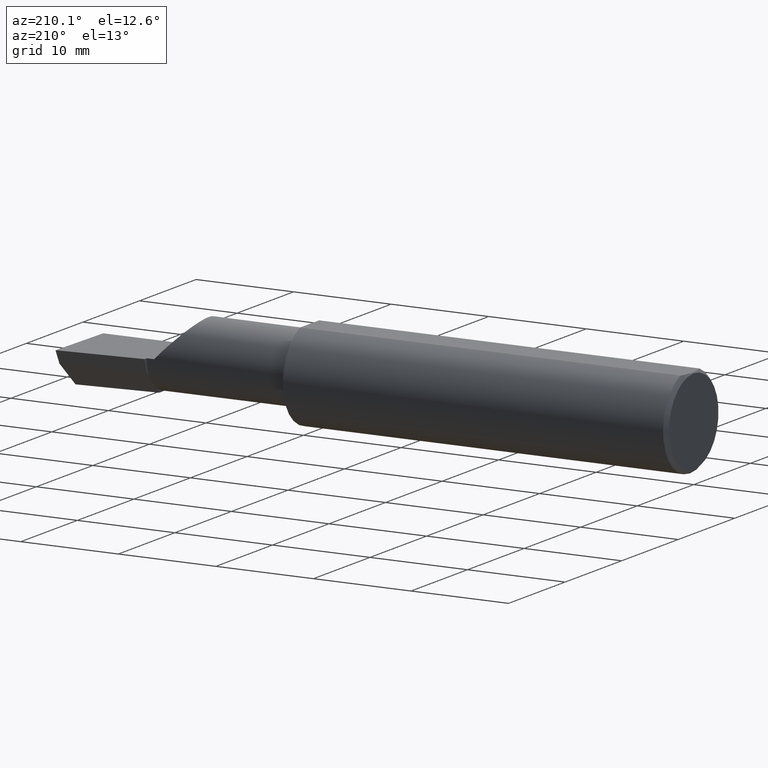
[diagram: clean part render]
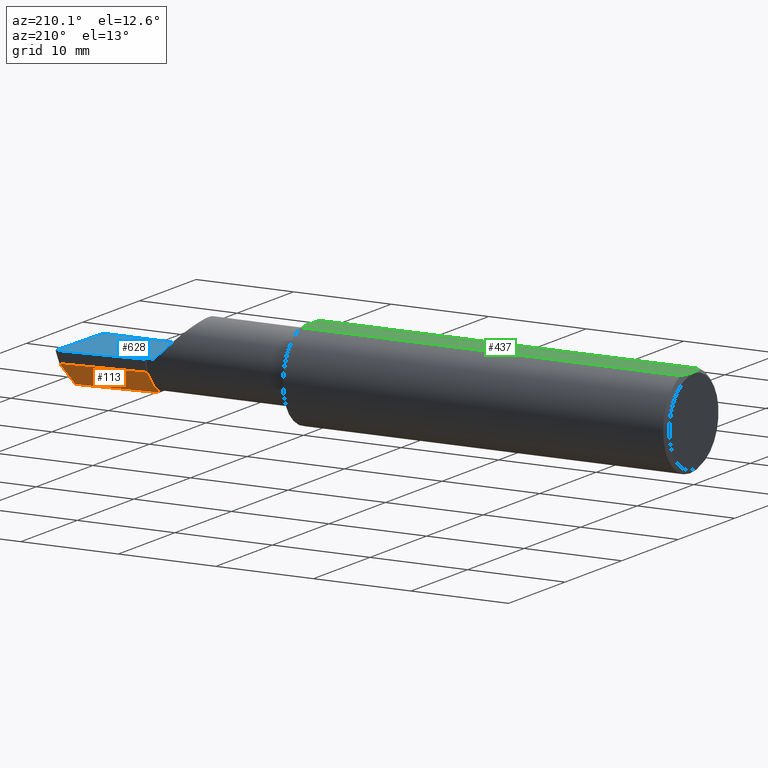
[diagram: same view with three faces highlighted in distinct colors, each labeled with its STEP entity id]
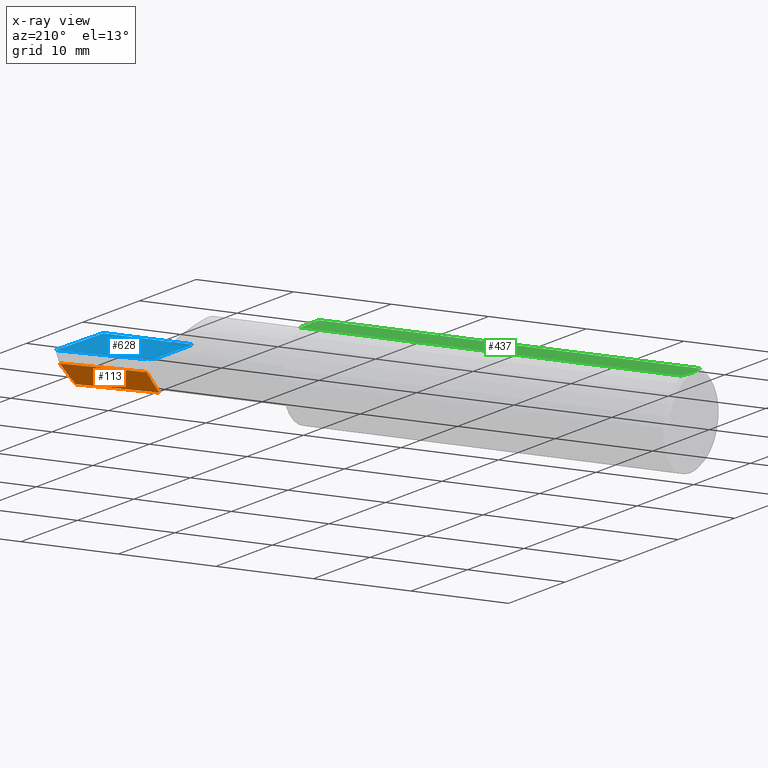
[diagram: x-ray of the same camera — body ghosted, the three highlighted faces saturated]
A machine part, auxiliary view with three faces highlighted in distinct colors.
The next image is the same camera in x-ray (body ghosted, the three faces saturated) — at least one of them is partly hidden behind the body in this view.
Their STEP definitions:

[orange] entity #113 — the highlighted planar face has unit normal (-0.0689, 0.716, -0.6947).
#2 = VECTOR ( 'NONE', #337, 39.37007874015748854 ) ;
#13 = CARTESIAN_POINT ( 'NONE',  ( 2.493766568580444432, 0.1168246249203732934, -0.04780233936830599606 ) ) ;
#16 = VERTEX_POINT ( 'NONE', #43 ) ;
#17 = CARTESIAN_POINT ( 'NONE',  ( 2.493439983562941720, 0.1146611065212079089, -0.04999999999999999584 ) ) ;
#25 = ORIENTED_EDGE ( 'NONE', *, *, #68, .F. ) ;
#38 = ORIENTED_EDGE ( 'NONE', *, *, #338, .T. ) ;
#43 = CARTESIAN_POINT ( 'NONE',  ( 2.160000000000000142, 0.01441505128072300204, -0.1202356058309979880 ) ) ;
#65 = LINE ( 'NONE', #114, #562 ) ;
#68 = EDGE_CURVE ( 'NONE', #620, #589, #403, .T. ) ;
#86 = CARTESIAN_POINT ( 'NONE',  ( 2.480058035321255794, 0.02601009779168077587, -0.1400500000000000633 ) ) ;
#113 = ADVANCED_FACE ( 'NONE', ( #123 ), #549, .T. ) ;
#114 = CARTESIAN_POINT ( 'NONE',  ( 2.160000000000000142, 0.06382066673065313334, -0.06931012851386068874 ) ) ;
#115 = CARTESIAN_POINT ( 'NONE',  ( 2.511419111345317923, 0.1163922996227946260, -0.04999999999999999584 ) ) ;
#117 = VECTOR ( 'NONE', #168, 39.37007874015748854 ) ;
#123 = FACE_OUTER_BOUND ( 'NONE', #328, .T. ) ;
#139 = CARTESIAN_POINT ( 'NONE',  ( 2.511419111345317923, 0.1163922996227946260, -0.04999999999999999584 ) ) ;
#168 = DIRECTION ( 'NONE',  ( 0.1053106618240635256, 0.6976485211320200275, 0.7086580314005359593 ) ) ;
#171 = EDGE_CURVE ( 'NONE', #589, #467, #192, .T. ) ;
#184 = LINE ( 'NONE', #326, #388 ) ;
#192 = LINE ( 'NONE', #139, #2 ) ;
#195 = AXIS2_PLACEMENT_3D ( 'NONE', #115, #321, #313 ) ;
#199 = CARTESIAN_POINT ( 'NONE',  ( 2.160000000000000142, 0.06495571228477943493, -0.06814016562413294231 ) ) ;
#228 = EDGE_CURVE ( 'NONE', #16, #433, #622, .T. ) ;
#266 = DIRECTION ( 'NONE',  ( 4.755568962650853567E-18, -0.6963153109074925462, -0.7177360153954946975 ) ) ;
#286 = DIRECTION ( 'NONE',  ( 4.755568962650853567E-18, -0.6963153109074925462, -0.7177360153954946975 ) ) ;
#313 = DIRECTION ( 'NONE',  ( 0.000000000000000000, 0.6963153109074925462, 0.7177360153954948085 ) ) ;
#318 = EDGE_CURVE ( 'NONE', #416, #16, #184, .T. ) ;
#321 = DIRECTION ( 'NONE',  ( -0.06894566448119621160, 0.7160281025913034503, -0.6946583704589934793 ) ) ;
#326 = CARTESIAN_POINT ( 'NONE',  ( 2.160000000000000142, 0.06382066673065313334, -0.06931012851386068874 ) ) ;
#328 = EDGE_LOOP ( 'NONE', ( #25, #38, #485, #587, #574, #499 ) ) ;
#337 = DIRECTION ( 'NONE',  ( -0.9953961983671800740, -0.09584575252021031166, 0.000000000000000000 ) ) ;
#338 = EDGE_CURVE ( 'NONE', #620, #433, #381, .T. ) ;
#350 = CARTESIAN_POINT ( 'NONE',  ( 2.160000000000000142, 0.08255448787293399870, -0.05000000000000000278 ) ) ;
#381 = LINE ( 'NONE', #491, #543 ) ;
#388 = VECTOR ( 'NONE', #468, 39.37007874015748854 ) ;
#389 = DIRECTION ( 'NONE',  ( -0.9953961983671800740, -0.09584575252021031166, -1.093478026937437817E-17 ) ) ;
#403 = LINE ( 'NONE', #13, #117 ) ;
#415 = VECTOR ( 'NONE', #286, 39.37007874015748854 ) ;
#416 = VERTEX_POINT ( 'NONE', #199 ) ;
#433 = VERTEX_POINT ( 'NONE', #492 ) ;
#467 = VERTEX_POINT ( 'NONE', #350 ) ;
#468 = DIRECTION ( 'NONE',  ( 4.755568962650853567E-18, -0.6963153109074925462, -0.7177360153954946975 ) ) ;
#485 = ORIENTED_EDGE ( 'NONE', *, *, #228, .F. ) ;
#491 = CARTESIAN_POINT ( 'NONE',  ( 2.491859106488688358, 0.02714641170210413054, -0.1400500000000000633 ) ) ;
#492 = CARTESIAN_POINT ( 'NONE',  ( 2.160000000000000142, -0.004807985797372735411, -0.1400500000000000911 ) ) ;
#499 = ORIENTED_EDGE ( 'NONE', *, *, #171, .F. ) ;
#543 = VECTOR ( 'NONE', #389, 39.37007874015748854 ) ;
#549 = PLANE ( 'NONE',  #195 ) ;
#562 = VECTOR ( 'NONE', #266, 39.37007874015748854 ) ;
#566 = CARTESIAN_POINT ( 'NONE',  ( 2.160000000000000142, 0.06382066673065313334, -0.06931012851386068874 ) ) ;
#574 = ORIENTED_EDGE ( 'NONE', *, *, #578, .F. ) ;
#578 = EDGE_CURVE ( 'NONE', #467, #416, #65, .T. ) ;
#587 = ORIENTED_EDGE ( 'NONE', *, *, #318, .F. ) ;
#589 = VERTEX_POINT ( 'NONE', #17 ) ;
#620 = VERTEX_POINT ( 'NONE', #86 ) ;
#622 = LINE ( 'NONE', #566, #415 ) ;

[blue] entity #628 — the highlighted planar face has unit normal (-0, 0, -1).
#15 = DIRECTION ( 'NONE',  ( 0.9953961983671787417, 0.09584575252022459191, -1.028972571603813720E-16 ) ) ;
#21 = VECTOR ( 'NONE', #584, 39.37007874015748854 ) ;
#23 = VERTEX_POINT ( 'NONE', #93 ) ;
#26 = DIRECTION ( 'NONE',  ( -1.033731667140896077E-16, 0.000000000000000000, -1.000000000000000000 ) ) ;
#40 = EDGE_CURVE ( 'NONE', #158, #567, #412, .T. ) ;
#46 = VERTEX_POINT ( 'NONE', #512 ) ;
#74 = ORIENTED_EDGE ( 'NONE', *, *, #384, .F. ) ;
#77 = VECTOR ( 'NONE', #436, 39.37007874015748143 ) ;
#93 = CARTESIAN_POINT ( 'NONE',  ( 2.160000000000000142, 0.09791172361284175563, 3.308097179827818849E-16 ) ) ;
#128 = VERTEX_POINT ( 'NONE', #308 ) ;
#158 = VERTEX_POINT ( 'NONE', #453 ) ;
#176 = ORIENTED_EDGE ( 'NONE', *, *, #40, .F. ) ;
#188 = CARTESIAN_POINT ( 'NONE',  ( 2.129999999999999893, -0.2500000000000000555, 1.065442715258197396E-16 ) ) ;
#196 = VECTOR ( 'NONE', #15, 39.37007874015748143 ) ;
#209 = CARTESIAN_POINT ( 'NONE',  ( -9.564882787816662316E-19, 0.08264999999999995961, 3.267291166268304703E-16 ) ) ;
#210 = EDGE_CURVE ( 'NONE', #351, #158, #572, .T. ) ;
#217 = ORIENTED_EDGE ( 'NONE', *, *, #341, .T. ) ;
#248 = ORIENTED_EDGE ( 'NONE', *, *, #513, .F. ) ;
#254 = LINE ( 'NONE', #393, #77 ) ;
#269 = CARTESIAN_POINT ( 'NONE',  ( 0.5470260790800316464, -0.05740000000000000657, 2.701812985571356346E-16 ) ) ;
#279 = CARTESIAN_POINT ( 'NONE',  ( 2.500000000000000000, -0.2500000000000000555, 6.829619984160658046E-17 ) ) ;
#290 = DIRECTION ( 'NONE',  ( -0.000000000000000000, 1.000000000000000000, -0.000000000000000000 ) ) ;
#301 = DIRECTION ( 'NONE',  ( -1.000000000000000000, -0.000000000000000000, -0.000000000000000000 ) ) ;
#304 = ORIENTED_EDGE ( 'NONE', *, *, #451, .F. ) ;
#308 = CARTESIAN_POINT ( 'NONE',  ( 2.491672876940991710, -0.1873499999999999888, 6.915950918908297591E-17 ) ) ;
#314 = VECTOR ( 'NONE', #598, 39.37007874015748143 ) ;
#336 = AXIS2_PLACEMENT_3D ( 'NONE', #279, #26, #527 ) ;
#340 = CARTESIAN_POINT ( 'NONE',  ( 3.377502344341257155E-32, -0.1873499999999999610, 3.267291166268304703E-16 ) ) ;
#341 = EDGE_CURVE ( 'NONE', #128, #46, #583, .T. ) ;
#345 = CARTESIAN_POINT ( 'NONE',  ( 2.490039159128059953, -0.2497391662021650194, 6.932588350567417155E-17 ) ) ;
#351 = VERTEX_POINT ( 'NONE', #449 ) ;
#377 = VECTOR ( 'NONE', #301, 39.37007874015748143 ) ;
#380 = FACE_OUTER_BOUND ( 'NONE', #390, .T. ) ;
#384 = EDGE_CURVE ( 'NONE', #567, #23, #254, .T. ) ;
#390 = EDGE_LOOP ( 'NONE', ( #304, #217, #248, #74, #176, #482 ) ) ;
#393 = CARTESIAN_POINT ( 'NONE',  ( 2.160000000000000142, -0.2500000000000000555, 1.034430765243970311E-16 ) ) ;
#402 = LINE ( 'NONE', #269, #196 ) ;
#412 = LINE ( 'NONE', #209, #314 ) ;
#436 = DIRECTION ( 'NONE',  ( -6.829619984160658816E-18, 1.000000000000000000, 7.059994452165177242E-34 ) ) ;
#449 = CARTESIAN_POINT ( 'NONE',  ( 2.129999999999999893, -0.1873499999999999888, 1.065442715258197396E-16 ) ) ;
#451 = EDGE_CURVE ( 'NONE', #128, #351, #495, .T. ) ;
#453 = CARTESIAN_POINT ( 'NONE',  ( 2.129999999999999893, 0.08264999999999983471, 1.065442715258197396E-16 ) ) ;
#482 = ORIENTED_EDGE ( 'NONE', *, *, #210, .F. ) ;
#495 = LINE ( 'NONE', #340, #377 ) ;
#501 = CARTESIAN_POINT ( 'NONE',  ( 2.160000000000000142, 0.08265000000000004288, 3.267291166268306182E-16 ) ) ;
#512 = CARTESIAN_POINT ( 'NONE',  ( 2.499999999999978684, 0.1306500000000238582, 8.403660643088248419E-14 ) ) ;
#513 = EDGE_CURVE ( 'NONE', #23, #46, #402, .T. ) ;
#527 = DIRECTION ( 'NONE',  ( -1.000000000000000000, 0.000000000000000000, 1.033731667140896077E-16 ) ) ;
#567 = VERTEX_POINT ( 'NONE', #501 ) ;
#568 = PLANE ( 'NONE',  #336 ) ;
#572 = LINE ( 'NONE', #188, #623 ) ;
#583 = LINE ( 'NONE', #345, #21 ) ;
#584 = DIRECTION ( 'NONE',  ( 0.02617694830779364323, 0.9996573249755593693, -2.665804247635780349E-18 ) ) ;
#598 = DIRECTION ( 'NONE',  ( 1.000000000000000000, 6.829619984160658046E-18, 0.000000000000000000 ) ) ;
#623 = VECTOR ( 'NONE', #290, 39.37007874015748143 ) ;
#628 = ADVANCED_FACE ( 'NONE', ( #380 ), #568, .F. ) ;

[green] entity #437 — the highlighted planar face has unit normal (0, -0, -1).
#7 = EDGE_LOOP ( 'NONE', ( #272, #560, #181, #140, #277 ) ) ;
#22 = CARTESIAN_POINT ( 'NONE',  ( 0.000000000000000000, 0.06597272163553663527, 0.1753499999999999781 ) ) ;
#49 = CARTESIAN_POINT ( 'NONE',  ( 0.008227791779583789808, -0.04447712204611815878, 0.1753499999999999781 ) ) ;
#59 = CARTESIAN_POINT ( 'NONE',  ( 0.003000000000000169632, 0.01127363201155560934, 0.1753499999999999781 ) ) ;
#82 = EDGE_CURVE ( 'NONE', #374, #334, #455, .T. ) ;
#103 = PLANE ( 'NONE',  #395 ) ;
#109 = EDGE_CURVE ( 'NONE', #514, #234, #462, .T. ) ;
#140 = ORIENTED_EDGE ( 'NONE', *, *, #396, .F. ) ;
#147 = DIRECTION ( 'NONE',  ( 0.000000000000000000, -1.438723400918613551E-16, -1.000000000000000000 ) ) ;
#149 = DIRECTION ( 'NONE',  ( 6.829619984160658046E-18, -1.000000000000000000, 1.438723400918613551E-16 ) ) ;
#160 = CARTESIAN_POINT ( 'NONE',  ( 0.008244775919947424855, 0.04453482769755855164, 0.1753499999999999504 ) ) ;
#169 = CARTESIAN_POINT ( 'NONE',  ( 1.550000000000000044, -0.06597272163553659363, 0.1753499999999999781 ) ) ;
#181 = ORIENTED_EDGE ( 'NONE', *, *, #609, .F. ) ;
#200 = CARTESIAN_POINT ( 'NONE',  ( 0.004093196532652216939, -0.02240707710020816909, 0.1753499999999999504 ) ) ;
#225 = VECTOR ( 'NONE', #596, 39.37007874015748143 ) ;
#234 = VERTEX_POINT ( 'NONE', #476 ) ;
#253 = CARTESIAN_POINT ( 'NONE',  ( 1.550000000000000044, 0.2373500000000000332, 0.1753499999999999504 ) ) ;
#258 = DIRECTION ( 'NONE',  ( 0.000000000000000000, 1.000000000000000000, -1.438723400918613551E-16 ) ) ;
#260 = CARTESIAN_POINT ( 'NONE',  ( 0.01125230581755086272, 0.05532998191409922023, 0.1753500000000000059 ) ) ;
#265 = VECTOR ( 'NONE', #149, 39.37007874015748143 ) ;
#272 = ORIENTED_EDGE ( 'NONE', *, *, #358, .F. ) ;
#277 = ORIENTED_EDGE ( 'NONE', *, *, #109, .F. ) ;
#303 = CARTESIAN_POINT ( 'NONE',  ( 2.500000000000000000, 0.2373500000000000332, 0.1753499999999999504 ) ) ;
#327 = B_SPLINE_CURVE_WITH_KNOTS ( 'NONE', 3,
 ( #408, #59, #399, #160, #260, #546 ),
 .UNSPECIFIED., .F., .F.,
 ( 4, 2, 4 ),
 ( 0.003480013901590607410, 0.004330767971208083697, 0.005181522040825559984 ),
 .UNSPECIFIED. ) ;
#334 = VERTEX_POINT ( 'NONE', #616 ) ;
#357 = CARTESIAN_POINT ( 'NONE',  ( 0.003000000000000218638, 2.334609556160449697E-17, 0.1753499999999999781 ) ) ;
#358 = EDGE_CURVE ( 'NONE', #334, #514, #391, .T. ) ;
#374 = VERTEX_POINT ( 'NONE', #532 ) ;
#391 = LINE ( 'NONE', #253, #265 ) ;
#394 = CARTESIAN_POINT ( 'NONE',  ( 0.003000000000000218638, 2.334609556160449697E-17, 0.1753499999999999781 ) ) ;
#395 = AXIS2_PLACEMENT_3D ( 'NONE', #303, #147, #258 ) ;
#396 = EDGE_CURVE ( 'NONE', #234, #538, #625, .T. ) ;
#399 = CARTESIAN_POINT ( 'NONE',  ( 0.004115035183746292881, 0.02255629470626744487, 0.1753499999999999781 ) ) ;
#406 = CARTESIAN_POINT ( 'NONE',  ( 0.000000000000000000, -0.06597272163553657975, 0.1753499999999999781 ) ) ;
#408 = CARTESIAN_POINT ( 'NONE',  ( 0.003000000000000218638, 2.334609556160449697E-17, 0.1753499999999999781 ) ) ;
#413 = VECTOR ( 'NONE', #602, 39.37007874015748143 ) ;
#437 = ADVANCED_FACE ( 'NONE', ( #490 ), #103, .F. ) ;
#440 = CARTESIAN_POINT ( 'NONE',  ( 0.01499999999999997863, -0.06597272163553657975, 0.1753499999999999781 ) ) ;
#455 = LINE ( 'NONE', #22, #413 ) ;
#462 = LINE ( 'NONE', #406, #225 ) ;
#476 = CARTESIAN_POINT ( 'NONE',  ( 0.01499999999999997863, -0.06597272163553657975, 0.1753499999999999781 ) ) ;
#487 = CARTESIAN_POINT ( 'NONE',  ( 0.003000000000000172667, -0.01126410975715121283, 0.1753500000000000059 ) ) ;
#490 = FACE_OUTER_BOUND ( 'NONE', #7, .T. ) ;
#514 = VERTEX_POINT ( 'NONE', #169 ) ;
#532 = CARTESIAN_POINT ( 'NONE',  ( 0.01499999999999999424, 0.06597272163553663527, 0.1753499999999999781 ) ) ;
#535 = CARTESIAN_POINT ( 'NONE',  ( 0.01128414053810044941, -0.05542038647445821781, 0.1753499999999999781 ) ) ;
#538 = VERTEX_POINT ( 'NONE', #357 ) ;
#546 = CARTESIAN_POINT ( 'NONE',  ( 0.01499999999999999424, 0.06597272163553663527, 0.1753499999999999781 ) ) ;
#560 = ORIENTED_EDGE ( 'NONE', *, *, #82, .F. ) ;
#596 = DIRECTION ( 'NONE',  ( -1.000000000000000000, -0.000000000000000000, -0.000000000000000000 ) ) ;
#602 = DIRECTION ( 'NONE',  ( 1.000000000000000000, 0.000000000000000000, 0.000000000000000000 ) ) ;
#609 = EDGE_CURVE ( 'NONE', #538, #374, #327, .T. ) ;
#616 = CARTESIAN_POINT ( 'NONE',  ( 1.550000000000000044, 0.06597272163553663527, 0.1753499999999999781 ) ) ;
#625 = B_SPLINE_CURVE_WITH_KNOTS ( 'NONE', 3,
 ( #440, #535, #49, #200, #487, #394 ),
 .UNSPECIFIED., .F., .F.,
 ( 4, 2, 4 ),
 ( 0.001779942938356815062, 0.002629978419973711019, 0.003480013901590607410 ),
 .UNSPECIFIED. ) ;